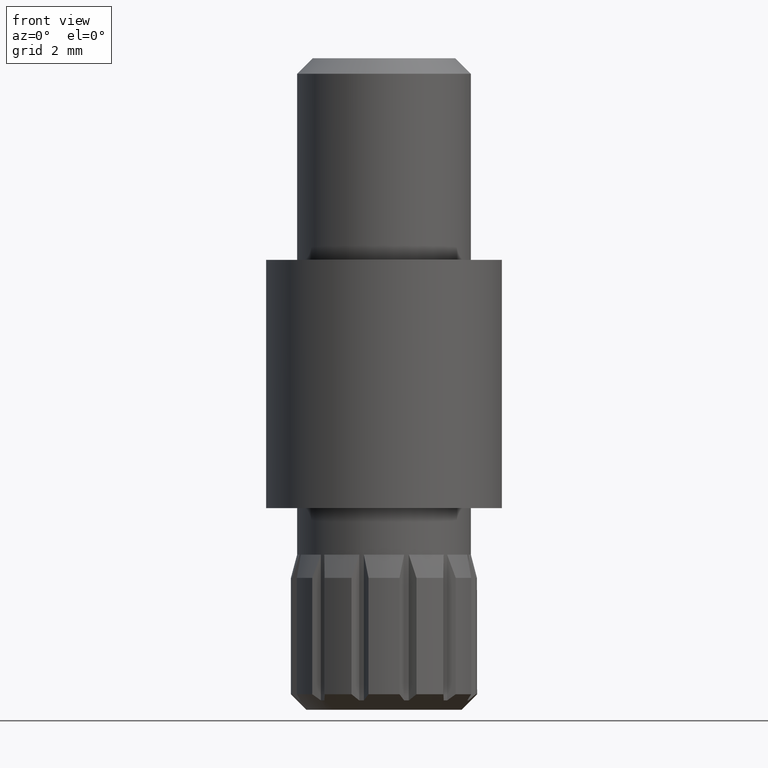
[diagram: clean part render]
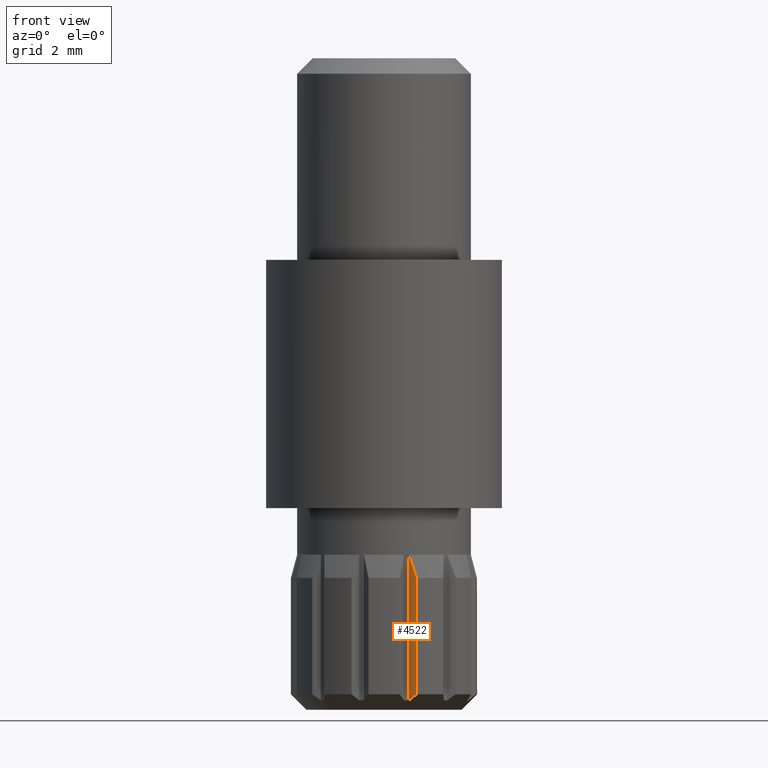
[diagram: same view with one face highlighted and labeled with its STEP entity id]
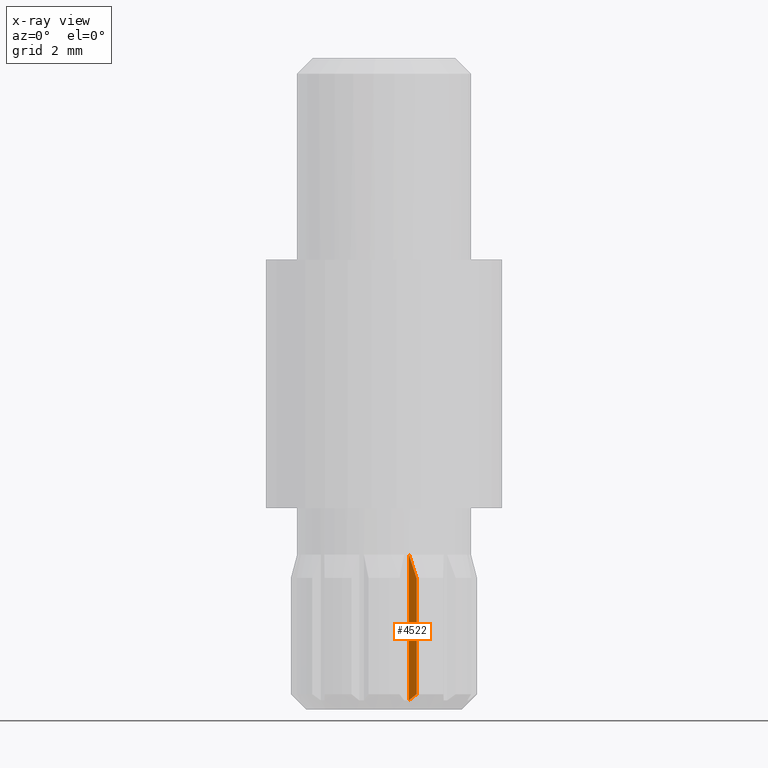
[diagram: x-ray of the same camera — body ghosted, the highlighted face saturated]
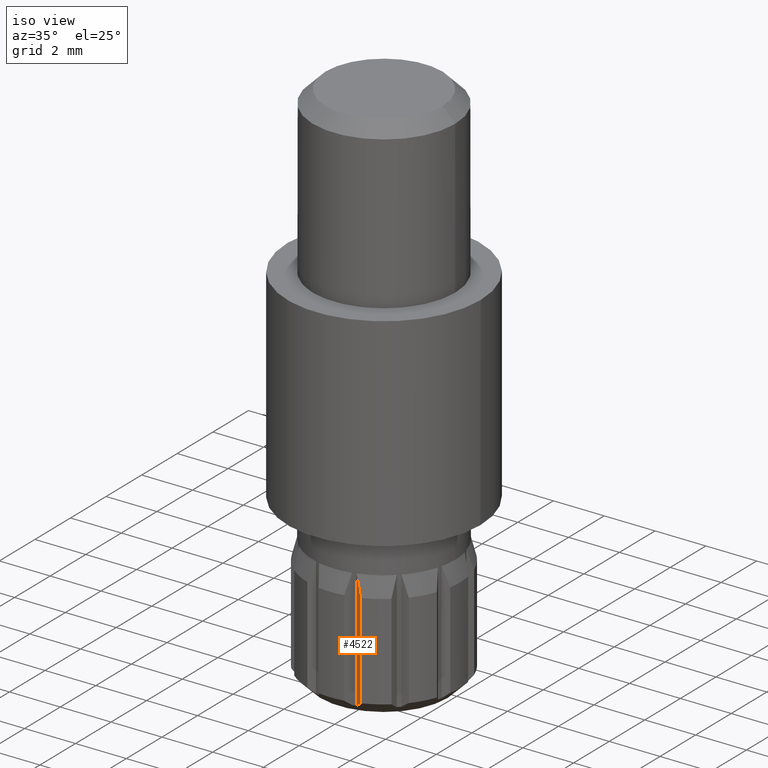
[diagram: same view with one face highlighted and labeled with its STEP entity id]
A machine part, front view. The second image highlights one B-rep face of the part: STEP entity #4522.
The next image is the same camera in x-ray: the body ghosted, the highlighted face saturated — about 0% of this face is hidden behind the body in this view.
A second angle (iso view) of the same face is appended — the face is thin or edge-on in the first view.
In plain terms, the highlighted planar face has unit normal (-0.4602, -0.8878, 0).
Its self-contained STEP definition (entity closure, byte-faithful):
#200 = CARTESIAN_POINT ( 'NONE',  ( 0.7988378706797321100, -2.683627779027463900, 5.000000000000000000 ) ) ;
#1119 = B_SPLINE_CURVE_WITH_KNOTS ( 'NONE', 3,
 ( #10934, #9924, #9966, #4002 ),
 .UNSPECIFIED., .F., .F.,
 ( 4, 4 ),
 ( 2.142295073325461300E-007, 0.0008002172599519533900 ),
 .UNSPECIFIED. ) ;
#3014 = EDGE_CURVE ( 'NONE', #5472, #3375, #6117, .T. ) ;
#3026 = AXIS2_PLACEMENT_3D ( 'NONE', #10028, #5072, #12023 ) ;
#3046 = PLANE ( 'NONE',  #3026 ) ;
#3375 = VERTEX_POINT ( 'NONE', #9944 ) ;
#3760 = VECTOR ( 'NONE', #5274, 1000.000000000000000 ) ;
#3783 = VECTOR ( 'NONE', #4238, 1000.000000000000000 ) ;
#4002 = CARTESIAN_POINT ( 'NONE',  ( 1.046007243882668600, -2.811737691489906600, 4.250000000000000000 ) ) ;
#4238 = DIRECTION ( 'NONE',  ( 0.0000000000000000000, 0.0000000000000000000, -1.000000000000000000 ) ) ;
#4522 = ADVANCED_FACE ( 'NONE', ( #12686 ), #3046, .T. ) ;
#4667 = VERTEX_POINT ( 'NONE', #200 ) ;
#5072 = DIRECTION ( 'NONE',  ( -0.4601699955644906200, -0.8878308257670358700, 0.0000000000000000000 ) ) ;
#5274 = DIRECTION ( 'NONE',  ( 0.0000000000000000000, 0.0000000000000000000, -1.000000000000000000 ) ) ;
#5304 = EDGE_CURVE ( 'NONE', #4667, #5472, #1119, .T. ) ;
#5369 = CARTESIAN_POINT ( 'NONE',  ( 0.7988378706797314400, -2.683627779027463000, 5.000000000000000000 ) ) ;
#5469 = EDGE_CURVE ( 'NONE', #4667, #9463, #9361, .T. ) ;
#5472 = VERTEX_POINT ( 'NONE', #7360 ) ;
#5601 = CARTESIAN_POINT ( 'NONE',  ( 0.7988378706797313300, -2.683627779027462500, 0.2999999999999996000 ) ) ;
#6117 = LINE ( 'NONE', #10221, #3783 ) ;
#6827 = EDGE_CURVE ( 'NONE', #3375, #9463, #10242, .T. ) ;
#7360 = CARTESIAN_POINT ( 'NONE',  ( 1.046007243882668600, -2.811737691489906600, 4.250000000000000000 ) ) ;
#8268 = CARTESIAN_POINT ( 'NONE',  ( 1.046007243882668400, -2.811737691489906200, 0.4999999999999998900 ) ) ;
#8548 = CARTESIAN_POINT ( 'NONE',  ( 0.9644935406564856300, -2.769488470846286800, 0.4319807832766576200 ) ) ;
#8995 = ORIENTED_EDGE ( 'NONE', *, *, #5304, .F. ) ;
#8998 = EDGE_LOOP ( 'NONE', ( #8995, #11062, #12680, #12876 ) ) ;
#9361 = LINE ( 'NONE', #5369, #3760 ) ;
#9463 = VERTEX_POINT ( 'NONE', #11404 ) ;
#9924 = CARTESIAN_POINT ( 'NONE',  ( 0.8837206488963483800, -2.727623218858802500, 4.751060318361801600 ) ) ;
#9944 = CARTESIAN_POINT ( 'NONE',  ( 1.046007243882668400, -2.811737691489906200, 0.4999999999999998900 ) ) ;
#9966 = CARTESIAN_POINT ( 'NONE',  ( 0.9658240740985840600, -2.770178097237238300, 4.500908567543602200 ) ) ;
#10028 = CARTESIAN_POINT ( 'NONE',  ( 0.7988378706797314400, -2.683627779027463000, 5.000000000000000000 ) ) ;
#10221 = CARTESIAN_POINT ( 'NONE',  ( 1.046007243882668400, -2.811737691489906200, 5.000000000000000000 ) ) ;
#10242 = B_SPLINE_CURVE_WITH_KNOTS ( 'NONE', 3,
 ( #8268, #8548, #11556, #5601 ),
 .UNSPECIFIED., .F., .F.,
 ( 4, 4 ),
 ( 2.803256453694393000E-007, 0.0003430701281783235900 ),
 .UNSPECIFIED. ) ;
#10934 = CARTESIAN_POINT ( 'NONE',  ( 0.7988378706797321100, -2.683627779027463900, 5.000000000000000000 ) ) ;
#11062 = ORIENTED_EDGE ( 'NONE', *, *, #5469, .T. ) ;
#11404 = CARTESIAN_POINT ( 'NONE',  ( 0.7988378706797313300, -2.683627779027462500, 0.2999999999999996000 ) ) ;
#11556 = CARTESIAN_POINT ( 'NONE',  ( 0.8821669342688298600, -2.726817915829775600, 0.3651688080806902400 ) ) ;
#12023 = DIRECTION ( 'NONE',  ( 0.8878308257670357600, -0.4601699955644905600, 0.0000000000000000000 ) ) ;
#12680 = ORIENTED_EDGE ( 'NONE', *, *, #6827, .F. ) ;
#12686 = FACE_OUTER_BOUND ( 'NONE', #8998, .T. ) ;
#12876 = ORIENTED_EDGE ( 'NONE', *, *, #3014, .F. ) ;